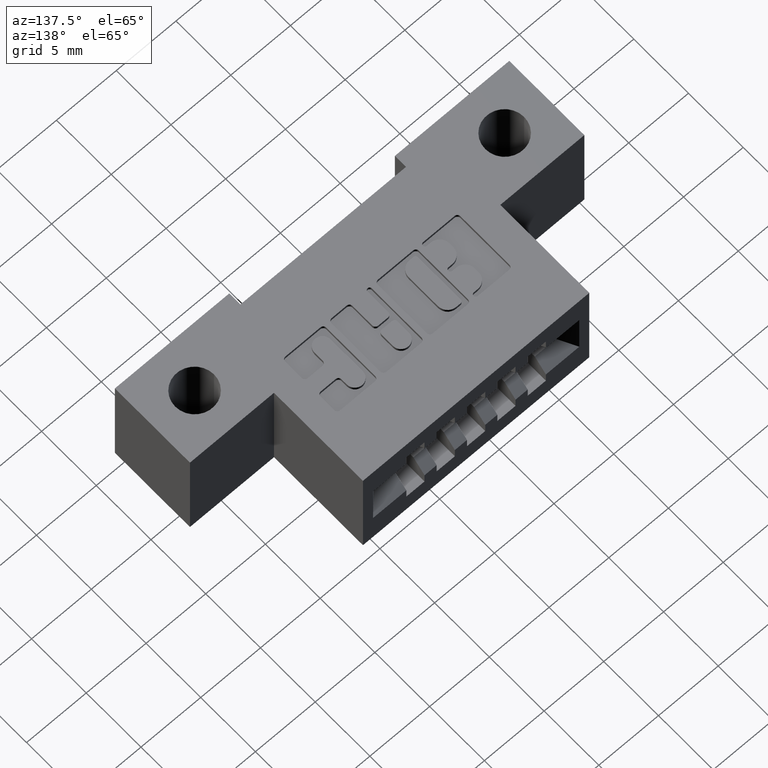
[diagram: clean part render]
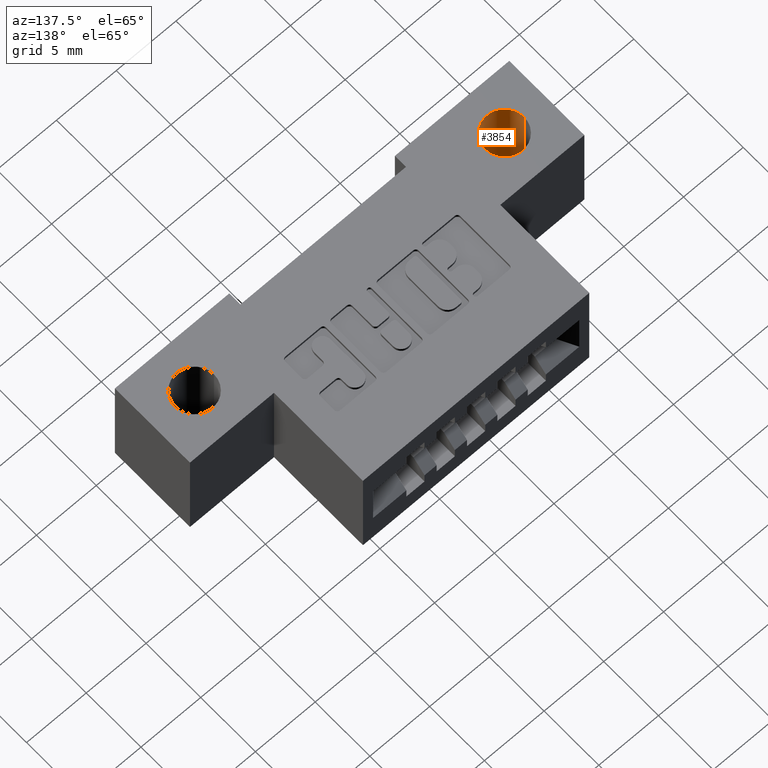
[diagram: same view with one face highlighted and labeled with its STEP entity id]
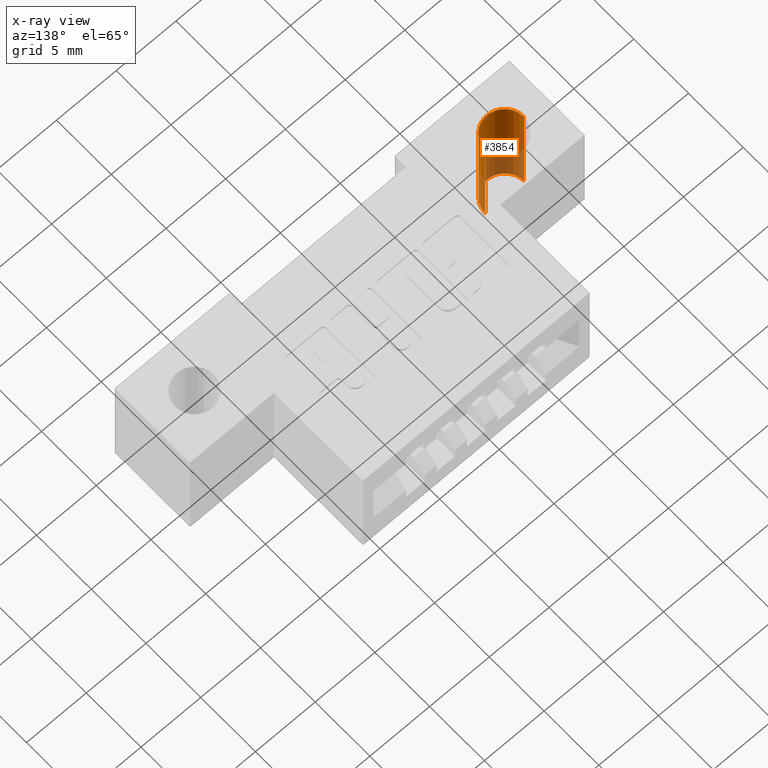
[diagram: x-ray of the same camera — body ghosted, the highlighted face saturated]
A machine part, auxiliary view. The second image highlights one B-rep face of the part: STEP entity #3854.
The next image is the same camera in x-ray: the body ghosted, the highlighted face saturated — about 34% of this face is hidden behind the body in this view.
In plain terms, the highlighted cylindrical surface (edge-blend (fillet) strip) has radius 1.6256 mm, axis along (0, 0, 1).
Its self-contained STEP definition (entity closure, byte-faithful):
#15 = CARTESIAN_POINT ( 'NONE',  ( 0.07500000000000005300, 0.1349999999999999800, -0.3700000000000001100 ) ) ;
#392 = CARTESIAN_POINT ( 'NONE',  ( 0.1390000000000000700, 0.1349999999999999800, -0.3700000000000001100 ) ) ;
#576 = DIRECTION ( 'NONE',  ( 1.000000000000000000, 0.0000000000000000000, 0.0000000000000000000 ) ) ;
#592 = VECTOR ( 'NONE', #6695, 39.37007874015748100 ) ;
#840 = DIRECTION ( 'NONE',  ( 0.0000000000000000000, 0.0000000000000000000, 1.000000000000000000 ) ) ;
#1730 = AXIS2_PLACEMENT_3D ( 'NONE', #392, #7272, #5552 ) ;
#1741 = AXIS2_PLACEMENT_3D ( 'NONE', #6810, #840, #576 ) ;
#1834 = FACE_OUTER_BOUND ( 'NONE', #1983, .T. ) ;
#1873 = VERTEX_POINT ( 'NONE', #15 ) ;
#1958 = CARTESIAN_POINT ( 'NONE',  ( 0.07500000000000005300, 0.1349999999999999800, 0.0000000000000000000 ) ) ;
#1983 = EDGE_LOOP ( 'NONE', ( #5567, #7324, #3420, #3572 ) ) ;
#2035 = CARTESIAN_POINT ( 'NONE',  ( 0.1390000000000000700, 0.1349999999999999800, -0.3700000000000001100 ) ) ;
#2400 = CIRCLE ( 'NONE', #1730, 0.06400000000000000100 ) ;
#2542 = LINE ( 'NONE', #6273, #592 ) ;
#2590 = CARTESIAN_POINT ( 'NONE',  ( 0.2030000000000000700, 0.1349999999999999800, 0.0000000000000000000 ) ) ;
#3096 = DIRECTION ( 'NONE',  ( 1.000000000000000000, 0.0000000000000000000, 0.0000000000000000000 ) ) ;
#3420 = ORIENTED_EDGE ( 'NONE', *, *, #6723, .T. ) ;
#3572 = ORIENTED_EDGE ( 'NONE', *, *, #3956, .F. ) ;
#3617 = DIRECTION ( 'NONE',  ( -0.0000000000000000000, -0.0000000000000000000, 1.000000000000000000 ) ) ;
#3854 = ADVANCED_FACE ( 'NONE', ( #1834 ), #6520, .F. ) ;
#3956 = EDGE_CURVE ( 'NONE', #4690, #4192, #2542, .T. ) ;
#4192 = VERTEX_POINT ( 'NONE', #2590 ) ;
#4246 = AXIS2_PLACEMENT_3D ( 'NONE', #2035, #3617, #3096 ) ;
#4354 = VERTEX_POINT ( 'NONE', #1958 ) ;
#4690 = VERTEX_POINT ( 'NONE', #5140 ) ;
#4695 = CIRCLE ( 'NONE', #1741, 0.06400000000000000100 ) ;
#5140 = CARTESIAN_POINT ( 'NONE',  ( 0.2030000000000000700, 0.1349999999999999800, -0.3700000000000001100 ) ) ;
#5552 = DIRECTION ( 'NONE',  ( 1.000000000000000000, 0.0000000000000000000, 0.0000000000000000000 ) ) ;
#5567 = ORIENTED_EDGE ( 'NONE', *, *, #6771, .F. ) ;
#5790 = DIRECTION ( 'NONE',  ( -0.0000000000000000000, -0.0000000000000000000, 1.000000000000000000 ) ) ;
#5874 = VECTOR ( 'NONE', #5790, 39.37007874015748100 ) ;
#6100 = CARTESIAN_POINT ( 'NONE',  ( 0.07500000000000005300, 0.1349999999999999800, -0.3700000000000001100 ) ) ;
#6273 = CARTESIAN_POINT ( 'NONE',  ( 0.2030000000000000700, 0.1349999999999999800, -0.3700000000000001100 ) ) ;
#6520 = CYLINDRICAL_SURFACE ( 'NONE', #4246, 0.06400000000000000100 ) ;
#6695 = DIRECTION ( 'NONE',  ( -0.0000000000000000000, -0.0000000000000000000, 1.000000000000000000 ) ) ;
#6723 = EDGE_CURVE ( 'NONE', #4354, #4192, #4695, .T. ) ;
#6771 = EDGE_CURVE ( 'NONE', #1873, #4690, #2400, .T. ) ;
#6810 = CARTESIAN_POINT ( 'NONE',  ( 0.1390000000000000700, 0.1349999999999999800, 0.0000000000000000000 ) ) ;
#7272 = DIRECTION ( 'NONE',  ( 0.0000000000000000000, 0.0000000000000000000, 1.000000000000000000 ) ) ;
#7296 = LINE ( 'NONE', #6100, #5874 ) ;
#7324 = ORIENTED_EDGE ( 'NONE', *, *, #7541, .T. ) ;
#7541 = EDGE_CURVE ( 'NONE', #1873, #4354, #7296, .T. ) ;